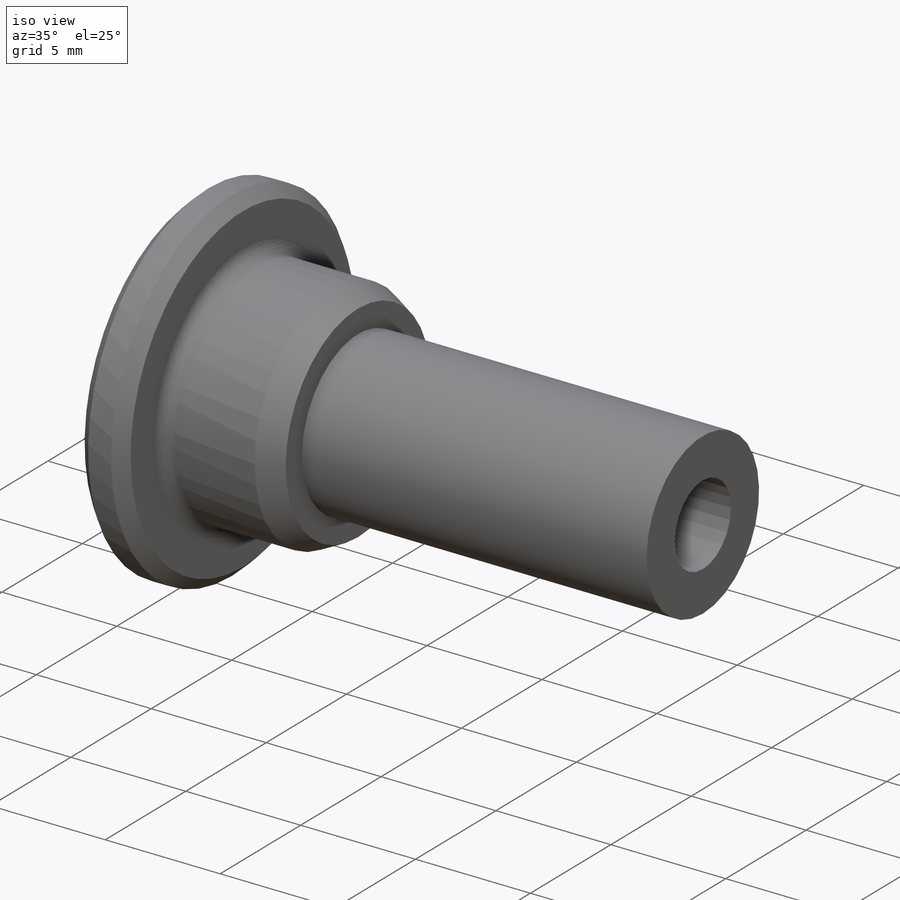
[diagram: iso view]
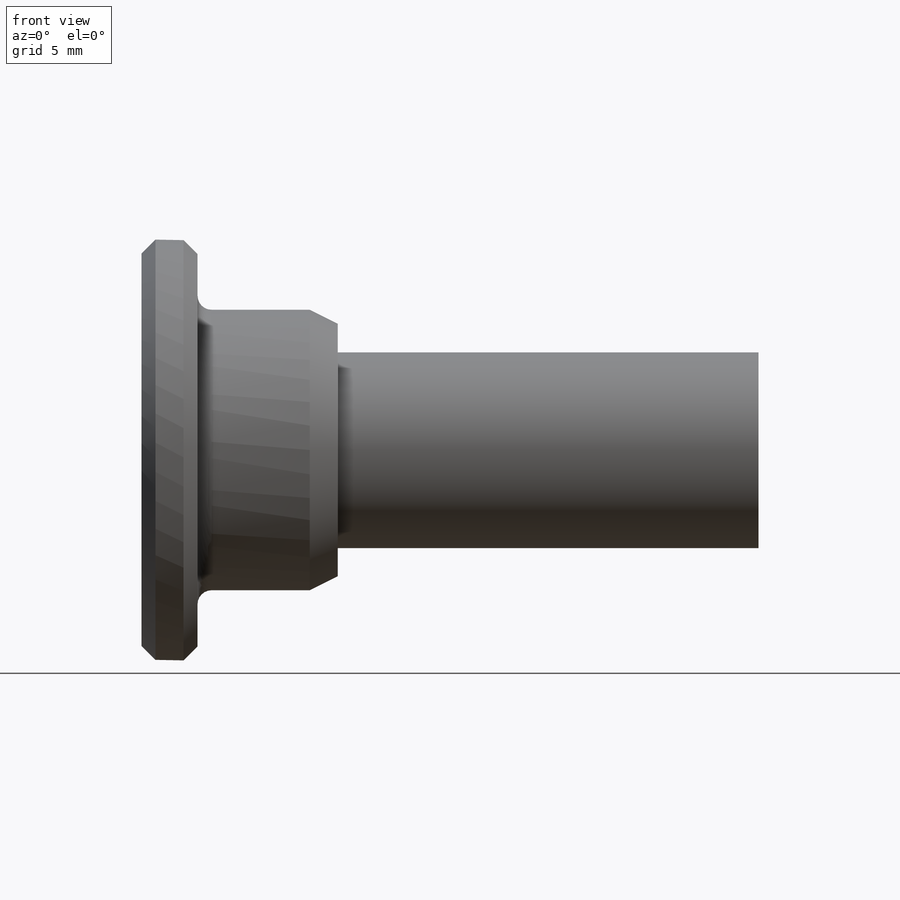
[diagram: front view]
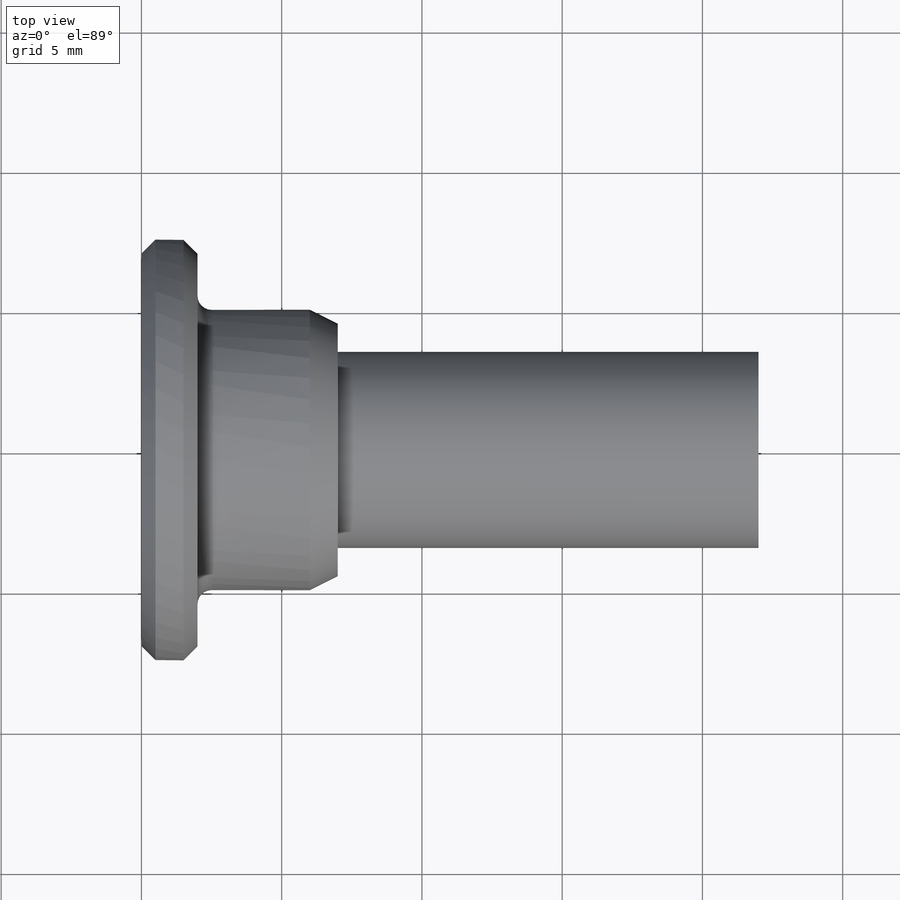
[diagram: top view]
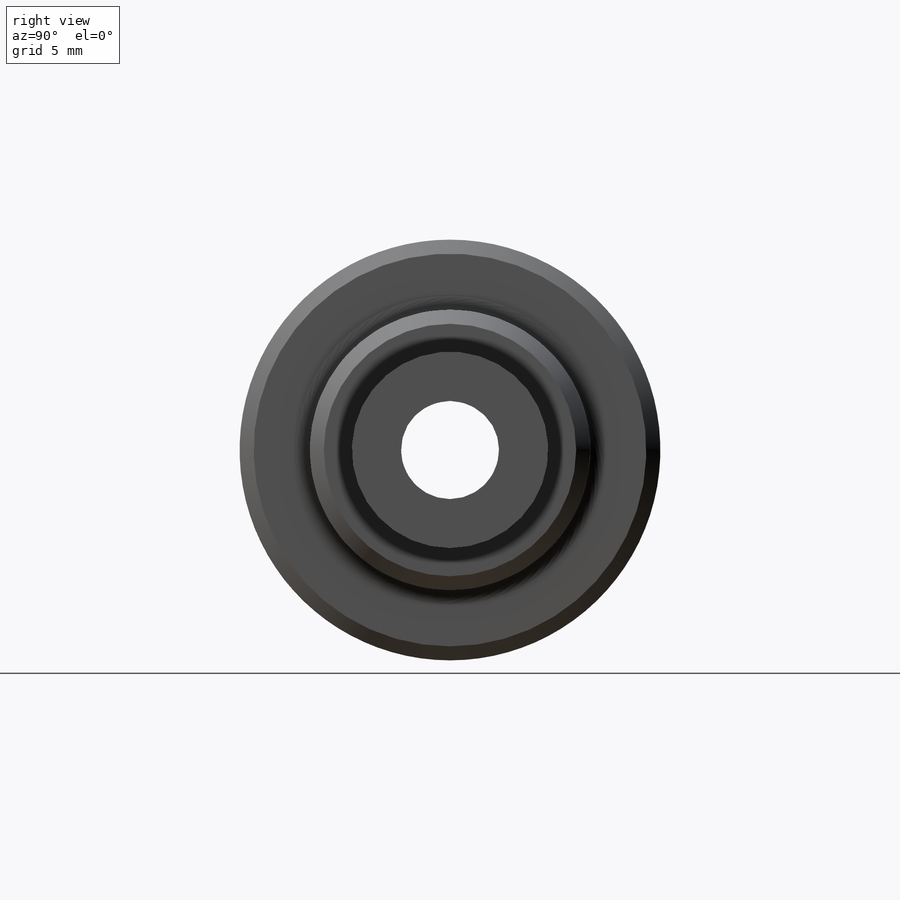
[diagram: right view]
SOLIDWORKS PART (.sldprt)
format: sldprt  version: not decoded by parser v0  size: 407,040 bytes
history: native  units: mm
features: sketch x2, chamfer x2, material x1, revolve x1, fillet x1, cut_extrude x1 (+16 scaffold rows collapsed)
feature tree (24):
  scaffold x16  (default folders/planes/origin — collapsed)
  material  "Alloy Steel (SS)"
  sketch  "Sketch1"  dims[c1.D1=7.5mm c1.D2=5.0mm c1.D3=1.0mm c1.D4=3.5mm c1.D5=2.0mm c1.D6=5.0mm c1.D7=1.0mm c2.D3=1.0mm c2.D6=4.0mm c2.D7=1.0mm c2.D8=15.0mm]
  revolve  "Revolve1"  Angle=360deg
  fillet  "Fillet1"  Radius=0.5mm
  chamfer  "Chamfer1"  Distance=0.5mm Angle=45deg
  sketch  "Sketch2"  dims[D1=3.5mm]
  cut_extrude  "Cut-Extrude1"  [1 undecoded]
  chamfer  "Chamfer2"  Distance=1mm Angle=45deg
decode coverage: 6 of 7 modeling features carry decoded parameters
note: 1 parameter value undecoded
note: suppression state not decoded; provenance and decode notes live in map.json
